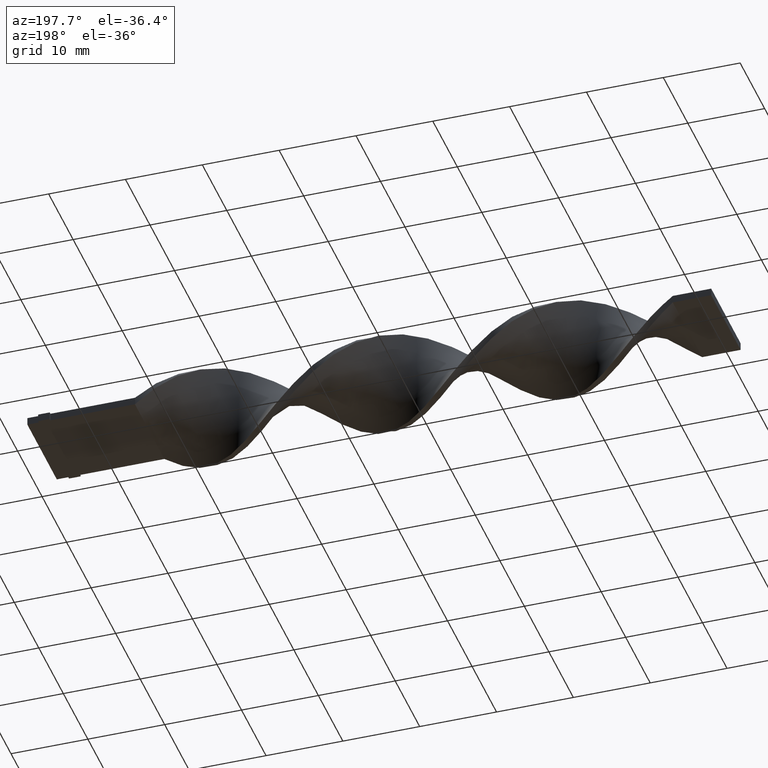
[diagram: clean part render]
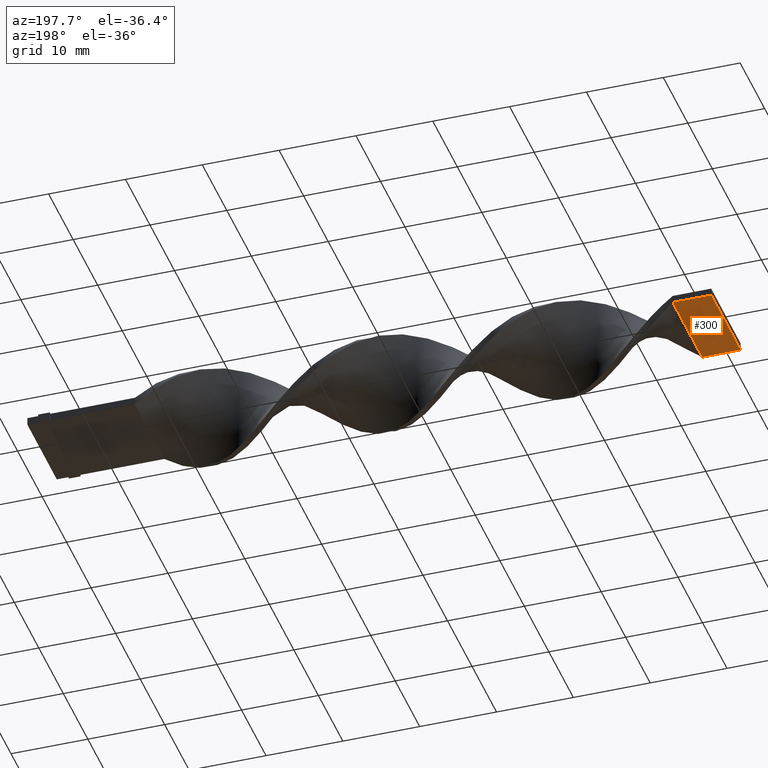
[diagram: same view with one face highlighted and labeled with its STEP entity id]
A machine part, auxiliary view. The second image highlights one B-rep face of the part: STEP entity #300.
In plain terms, the highlighted planar face has unit normal (0, 0, 1).
Its self-contained STEP definition (entity closure, byte-faithful):
#28 = CARTESIAN_POINT ( 'NONE',  ( -89.00000000000001421, 5.999999999999998224, -0.5000000000000007772 ) ) ;
#33 = CARTESIAN_POINT ( 'NONE',  ( -84.00000000000000000, -6.000000000000001776, -0.4999999999999992784 ) ) ;
#47 = LINE ( 'NONE', #192, #397 ) ;
#62 = DIRECTION ( 'NONE',  ( 0.000000000000000000, -1.000000000000000000, 1.264902534566421675E-16 ) ) ;
#70 = CARTESIAN_POINT ( 'NONE',  ( -89.00000000000001421, 5.999999999999998224, -0.5000000000000007772 ) ) ;
#171 = FACE_OUTER_BOUND ( 'NONE', #730, .T. ) ;
#188 = CARTESIAN_POINT ( 'NONE',  ( -84.00000000000000000, 5.999999999999998224, -0.5000000000000007772 ) ) ;
#192 = CARTESIAN_POINT ( 'NONE',  ( -89.00000000000001421, 5.999999999999998224, -0.5000000000000007772 ) ) ;
#300 = ADVANCED_FACE ( 'NONE', ( #171 ), #956, .F. ) ;
#379 = CARTESIAN_POINT ( 'NONE',  ( -84.00000000000000000, 1.999999999999998224, -0.5000000000000002220 ) ) ;
#397 = VECTOR ( 'NONE', #1086, 1000.000000000000000 ) ;
#418 = CARTESIAN_POINT ( 'NONE',  ( -89.00000000000001421, -6.000000000000001776, -0.4999999999999992784 ) ) ;
#458 = LINE ( 'NONE', #418, #515 ) ;
#505 = ORIENTED_EDGE ( 'NONE', *, *, #1022, .T. ) ;
#515 = VECTOR ( 'NONE', #826, 1000.000000000000000 ) ;
#564 = CARTESIAN_POINT ( 'NONE',  ( -84.00000000000000000, -6.000000000000001776, -0.4999999999999992784 ) ) ;
#576 = VERTEX_POINT ( 'NONE', #28 ) ;
#579 = DIRECTION ( 'NONE',  ( 0.000000000000000000, 1.264902534566421675E-16, 1.000000000000000000 ) ) ;
#625 = EDGE_CURVE ( 'NONE', #576, #1280, #47, .T. ) ;
#730 = EDGE_LOOP ( 'NONE', ( #1340, #1021, #1112, #505 ) ) ;
#815 = CARTESIAN_POINT ( 'NONE',  ( -89.00000000000001421, 5.999999999999998224, -0.5000000000000007772 ) ) ;
#826 = DIRECTION ( 'NONE',  ( 1.000000000000000000, -0.000000000000000000, -0.000000000000000000 ) ) ;
#901 = EDGE_CURVE ( 'NONE', #1096, #1489, #1197, .T. ) ;
#903 = CARTESIAN_POINT ( 'NONE',  ( -84.00000000000000000, 5.999999999999998224, -0.5000000000000007772 ) ) ;
#956 = PLANE ( 'NONE',  #1427 ) ;
#1021 = ORIENTED_EDGE ( 'NONE', *, *, #1558, .F. ) ;
#1022 = EDGE_CURVE ( 'NONE', #576, #1096, #1044, .T. ) ;
#1044 = LINE ( 'NONE', #815, #1560 ) ;
#1086 = DIRECTION ( 'NONE',  ( 0.000000000000000000, -1.000000000000000000, 1.264902534566421675E-16 ) ) ;
#1096 = VERTEX_POINT ( 'NONE', #188 ) ;
#1112 = ORIENTED_EDGE ( 'NONE', *, *, #625, .F. ) ;
#1197 = B_SPLINE_CURVE_WITH_KNOTS ( 'NONE', 3,
 ( #903, #379, #1536, #33 ),
 .UNSPECIFIED., .F., .F.,
 ( 4, 4 ),
 ( 0.000000000000000000, 1.000000000000000000 ),
 .UNSPECIFIED. ) ;
#1205 = DIRECTION ( 'NONE',  ( 1.000000000000000000, -0.000000000000000000, -0.000000000000000000 ) ) ;
#1280 = VERTEX_POINT ( 'NONE', #1514 ) ;
#1340 = ORIENTED_EDGE ( 'NONE', *, *, #901, .T. ) ;
#1427 = AXIS2_PLACEMENT_3D ( 'NONE', #70, #579, #62 ) ;
#1489 = VERTEX_POINT ( 'NONE', #564 ) ;
#1514 = CARTESIAN_POINT ( 'NONE',  ( -89.00000000000001421, -6.000000000000001776, -0.4999999999999992784 ) ) ;
#1536 = CARTESIAN_POINT ( 'NONE',  ( -84.00000000000000000, -2.000000000000001776, -0.4999999999999997780 ) ) ;
#1558 = EDGE_CURVE ( 'NONE', #1280, #1489, #458, .T. ) ;
#1560 = VECTOR ( 'NONE', #1205, 1000.000000000000000 ) ;